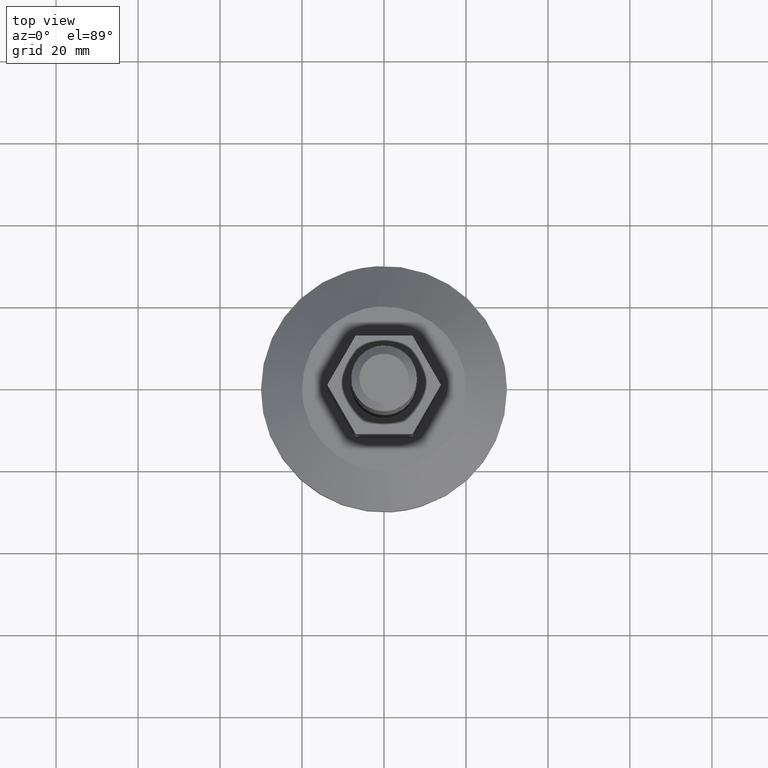
[diagram: clean part render]
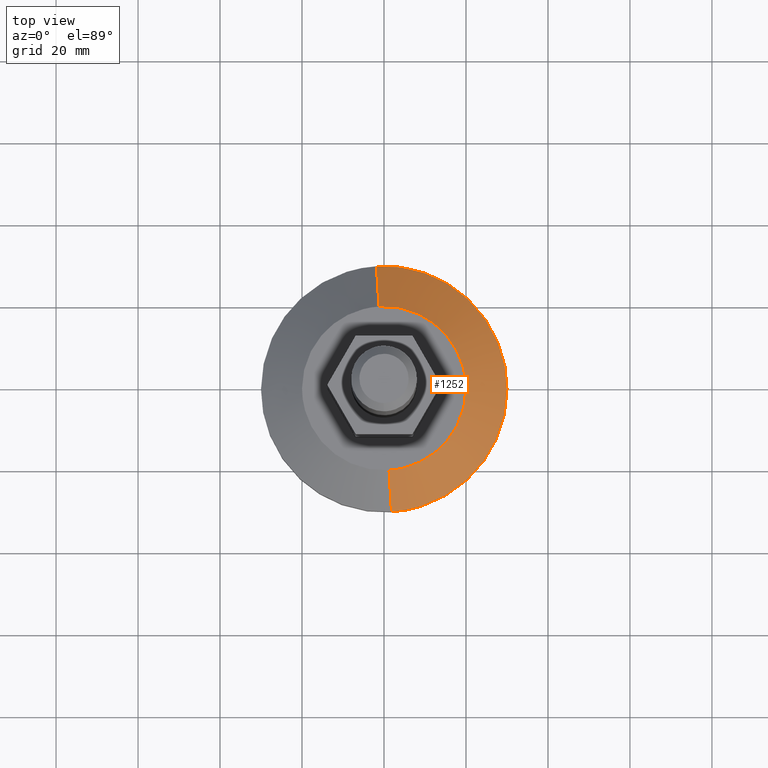
[diagram: same view with one face highlighted and labeled with its STEP entity id]
A machine part, top view. The second image highlights one B-rep face of the part: STEP entity #1252.
In plain terms, the highlighted face is a freeform B-spline surface patch.
Its self-contained STEP definition (entity closure, byte-faithful):
#825=CARTESIAN_POINT('',(1.220970790796687,-19.962695968444908,16.999999999988560));
#826=VERTEX_POINT('',#825);
#844=CARTESIAN_POINT('',(20.0,0.0,17.0));
#845=VERTEX_POINT('',#844);
#846=CARTESIAN_POINT('',(20.0,0.0,17.0));
#847=CARTESIAN_POINT('',(20.000000000000419,-18.814121338027476,16.999999999994284));
#848=CARTESIAN_POINT('',(1.220970790796687,-19.962695968444901,16.999999999988564));
#856=(BOUNDED_CURVE()B_SPLINE_CURVE(2,(#846,#847,#848),.UNSPECIFIED.,.F.,.U.)B_SPLINE_CURVE_WITH_KNOTS((3,3),(0.500000000000000,0.739332962241115),.UNSPECIFIED.)CURVE()GEOMETRIC_REPRESENTATION_ITEM()RATIONAL_B_SPLINE_CURVE((1.0,0.719603993284165,0.976072041671373))REPRESENTATION_ITEM(''));
#857=EDGE_CURVE('',#845,#826,#856,.T.);
#859=CARTESIAN_POINT('',(-1.220970790796687,19.962695968444908,16.999999999988560));
#860=VERTEX_POINT('',#859);
#861=CARTESIAN_POINT('',(-1.220970790796688,19.962695968444908,16.999999999988564));
#862=CARTESIAN_POINT('',(-0.611055266022095,20.000000000013404,16.999999999988720));
#863=CARTESIAN_POINT('',(-8.084121E-013,20.000000000013198,16.999999999988891));
#864=CARTESIAN_POINT('',(19.999999999999616,20.000000000006391,16.999999999994614));
#865=CARTESIAN_POINT('',(20.0,0.0,17.0));
#873=(BOUNDED_CURVE()B_SPLINE_CURVE(2,(#861,#862,#863,#864,#865),.UNSPECIFIED.,.F.,.U.)B_SPLINE_CURVE_WITH_KNOTS((3,2,3),(0.239332962241115,0.250000000000000,0.500000000000000),.UNSPECIFIED.)CURVE()GEOMETRIC_REPRESENTATION_ITEM()RATIONAL_B_SPLINE_CURVE((0.976072041671373,0.987502787902382,1.0,0.707106781186548,1.0))REPRESENTATION_ITEM(''));
#874=EDGE_CURVE('',#860,#845,#873,.T.);
#1186=CARTESIAN_POINT('',(-1.205708655813425,19.713162268831869,17.209774899999999));
#1187=CARTESIAN_POINT('',(18.507453613018441,20.918870924645290,17.209774900000003));
#1188=CARTESIAN_POINT('',(19.713162268831869,1.205708655813425,17.209774899999999));
#1189=CARTESIAN_POINT('',(20.918870924645290,-18.507453613018441,17.209774900000003));
#1190=CARTESIAN_POINT('',(1.205708655813425,-19.713162268831869,17.209774899999999));
#1191=CARTESIAN_POINT('',(-1.847099874301517,30.199815994751610,8.393984727499998));
#1192=CARTESIAN_POINT('',(28.352716120450101,32.046915869053130,8.393984727499998));
#1193=CARTESIAN_POINT('',(30.199815994751610,1.847099874301517,8.393984727499998));
#1194=CARTESIAN_POINT('',(32.046915869053130,-28.352716120450101,8.393984727499998));
#1195=CARTESIAN_POINT('',(1.847099874301517,-30.199815994751610,8.393984727499998));
#1203=(BOUNDED_SURFACE()B_SPLINE_SURFACE(2,1,((#1186,#1191),(#1187,#1192),(#1188,#1193),(#1189,#1194),(#1190,#1195)),.UNSPECIFIED.,.F.,.F.,.U.)B_SPLINE_SURFACE_WITH_KNOTS((3,2,3),(2,2),(0.0,50.130196386203828,100.260392772407700),(0.0,13.714935122998130),.UNSPECIFIED.)GEOMETRIC_REPRESENTATION_ITEM()RATIONAL_B_SPLINE_SURFACE(((1.0,1.0),(0.707106781186548,0.707106781186548),(1.0,1.0),(0.707106781186548,0.707106781186548),(1.0,1.0)))REPRESENTATION_ITEM('')SURFACE());
#1204=CARTESIAN_POINT('',(-1.831456145177757,29.944043896663011,8.609004048973443));
#1205=VERTEX_POINT('',#1204);
#1206=CARTESIAN_POINT('',(-1.220970790796687,19.962695968444908,16.999999999988560));
#1207=CARTESIAN_POINT('',(-1.831456145177757,29.944043896663011,8.609004048973443));
#1208=QUASI_UNIFORM_CURVE('',1,(#1206,#1207),.UNSPECIFIED.,.F.,.U.);
#1209=EDGE_CURVE('',#860,#1205,#1208,.T.);
#1210=ORIENTED_EDGE('',*,*,#1209,.F.);
#1211=ORIENTED_EDGE('',*,*,#874,.T.);
#1212=ORIENTED_EDGE('',*,*,#857,.T.);
#1213=CARTESIAN_POINT('',(1.831456145177749,-29.944043896663011,8.609004048973443));
#1214=VERTEX_POINT('',#1213);
#1215=CARTESIAN_POINT('',(1.220970790796687,-19.962695968444908,16.999999999988560));
#1216=CARTESIAN_POINT('',(1.831456145177749,-29.944043896663011,8.609004048973443));
#1217=QUASI_UNIFORM_CURVE('',1,(#1215,#1216),.UNSPECIFIED.,.F.,.U.);
#1218=EDGE_CURVE('',#826,#1214,#1217,.T.);
#1219=ORIENTED_EDGE('',*,*,#1218,.T.);
#1220=CARTESIAN_POINT('',(30.0,0.0,8.609004000000001));
#1221=VERTEX_POINT('',#1220);
#1222=CARTESIAN_POINT('',(30.0,0.0,8.609004000000001));
#1223=CARTESIAN_POINT('',(30.000024011925227,-28.221225893258318,8.609004024486724));
#1224=CARTESIAN_POINT('',(1.831456145177749,-29.944043896663015,8.609004048973443));
#1232=(BOUNDED_CURVE()B_SPLINE_CURVE(2,(#1222,#1223,#1224),.UNSPECIFIED.,.F.,.U.)B_SPLINE_CURVE_WITH_KNOTS((3,3),(0.500000000000000,0.739333239205728),.UNSPECIFIED.)CURVE()GEOMETRIC_REPRESENTATION_ITEM()RATIONAL_B_SPLINE_CURVE((1.0,0.719603668799938,0.976072635259979))REPRESENTATION_ITEM(''));
#1233=EDGE_CURVE('',#1221,#1214,#1232,.T.);
#1234=ORIENTED_EDGE('',*,*,#1233,.F.);
#1235=CARTESIAN_POINT('',(-1.831456145177757,29.944043896663011,8.609004048973443));
#1236=CARTESIAN_POINT('',(-0.916606132952510,29.999997047330773,8.609004048269682));
#1237=CARTESIAN_POINT('',(-0.000046600125292,29.999997093093299,8.609004047521566));
#1238=CARTESIAN_POINT('',(29.999977411799932,29.999998590952497,8.609004023034848));
#1239=CARTESIAN_POINT('',(30.0,0.0,8.609004000000001));
#1247=(BOUNDED_CURVE()B_SPLINE_CURVE(2,(#1235,#1236,#1237,#1238,#1239),.UNSPECIFIED.,.F.,.U.)B_SPLINE_CURVE_WITH_KNOTS((3,2,3),(0.239333239205728,0.250000000000000,0.500000000000000),.UNSPECIFIED.)CURVE()GEOMETRIC_REPRESENTATION_ITEM()RATIONAL_B_SPLINE_CURVE((0.976072635259979,0.987503112386610,1.0,0.707106781186547,1.0))REPRESENTATION_ITEM(''));
#1248=EDGE_CURVE('',#1205,#1221,#1247,.T.);
#1249=ORIENTED_EDGE('',*,*,#1248,.F.);
#1250=EDGE_LOOP('',(#1210,#1211,#1212,#1219,#1234,#1249));
#1251=FACE_OUTER_BOUND('',#1250,.T.);
#1252=ADVANCED_FACE('',(#1251),#1203,.T.);